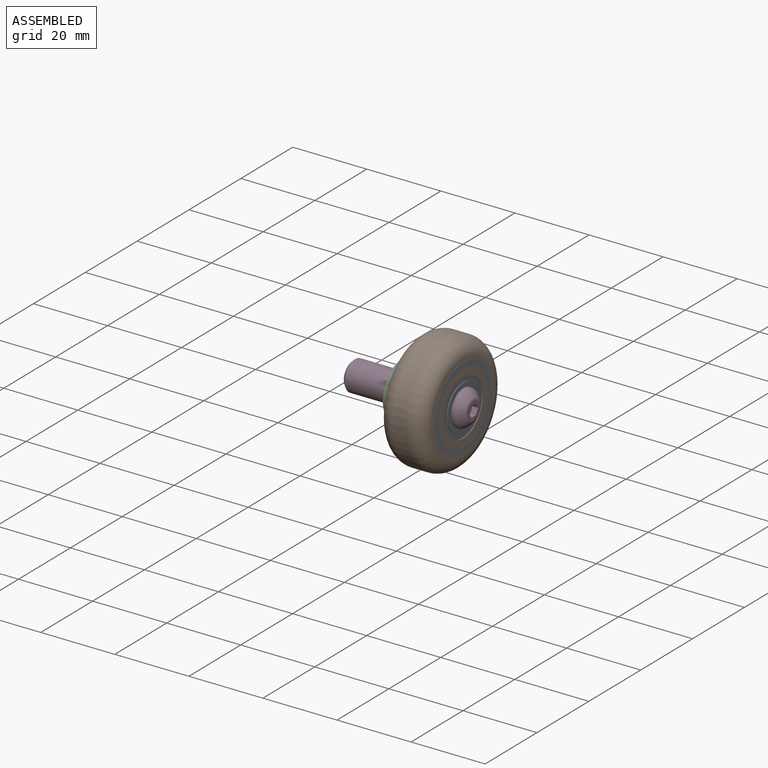
[diagram: assembled view]
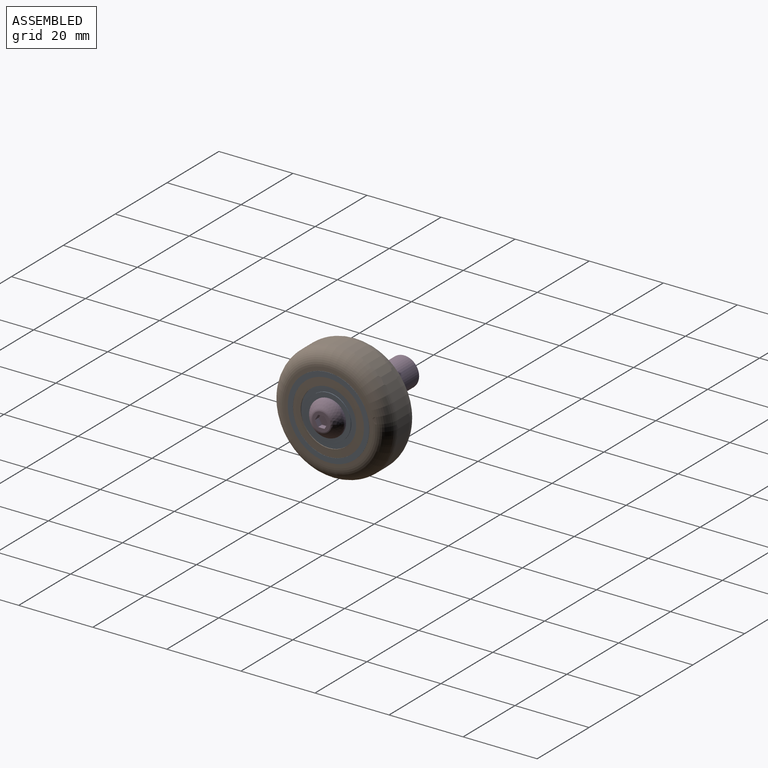
[diagram: assembled view, second angle]
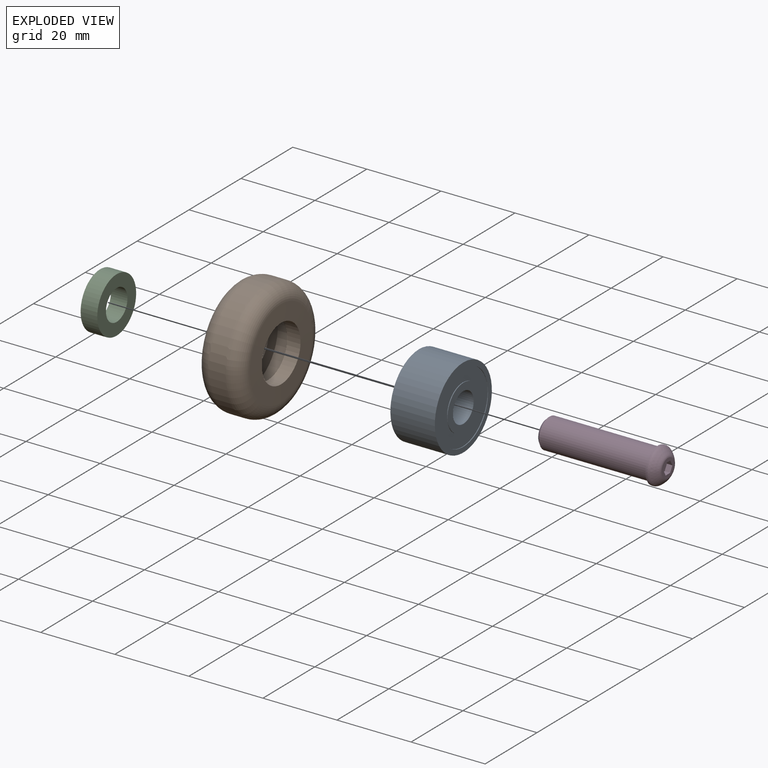
[diagram: exploded view]
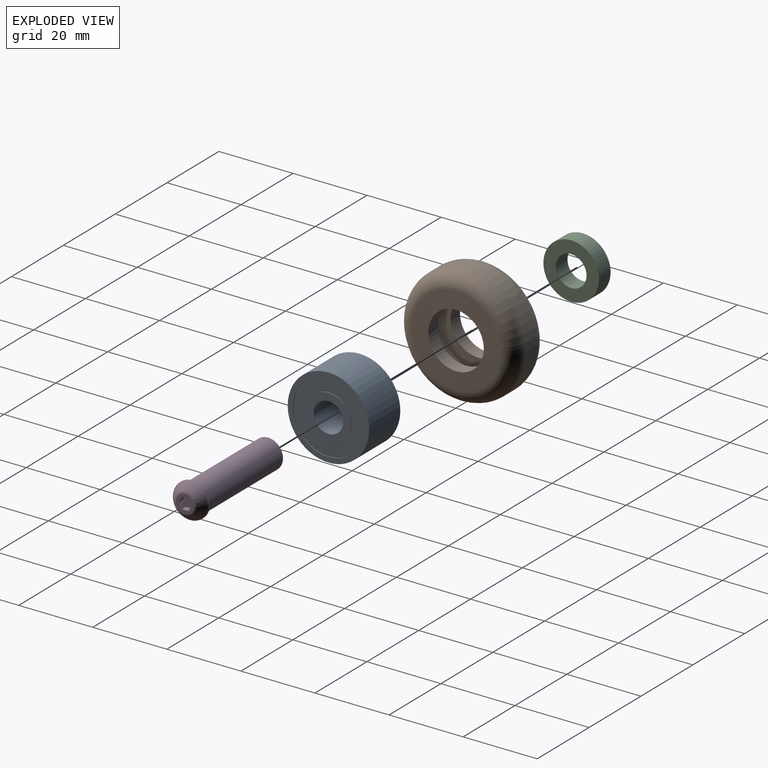
[diagram: exploded view, second angle]
ASSEMBLY  parts=4 mates=3
PART A: 12 faces, bbox 22x22x12 mm
  f0: plane 19.2x19.2mm, normal (0,0,1), area 174.5mm2, adj f1,f4
  f1: cylinder r=6.05mm len=12.1mm, axis (0,0,-1), area 7.6mm2, adj f0,f3
  f2: cylinder r=4mm len=12mm, axis (0,0,-1), area 301.6mm2, adj f3,f9
  f3: plane 12.1x12.1mm, normal (0,0,1), area 64.7mm2, adj f1,f2
  f4: cylinder r=9.6mm len=19.2mm, axis (0,0,-1), area 12.1mm2, adj f0,f6
  f5: cylinder r=11mm len=22mm, axis (0,0,-1), area 829.4mm2, adj f6,f11
  f6: plane 22x22mm, normal (0,0,1), area 90.6mm2, adj f4,f5
  f7: plane 19.2x19.2mm, normal (0,0,-1), area 174.5mm2, adj f8,f10
  f8: cylinder r=6.05mm len=12.1mm, axis (0,0,1), area 7.6mm2, adj f7,f9
  f9: plane 12.1x12.1mm, normal (0,0,-1), area 64.7mm2, adj f2,f8
  f10: cylinder r=9.6mm len=19.2mm, axis (0,0,1), area 12.1mm2, adj f7,f11
  f11: plane 22x22mm, normal (0,0,-1), area 90.6mm2, adj f5,f10
PART B: 10 faces, bbox 12.2x34.6x34.6 mm
  f0: torus R=12mm, axis (-1,0,0), area 570.2mm2, adj f1,f9
  f1: cone r=12.05mm half-angle=89.2deg, axis (1,0,0), area 279.8mm2, adj f0,f2
  f2: cylinder r=7.5mm len=15mm, axis (-1,0,0), area 170.4mm2, adj f1,f3
  f3: plane 22x22mm, normal (1,0,0), area 203.4mm2, adj f2,f4
  f4: cylinder r=11mm len=22mm, axis (-1,0,0), area 345.6mm2, adj f3,f5
  f5: plane 22x22mm, normal (-1,0,0), area 203.4mm2, adj f4,f6
  f6: cylinder r=7.5mm len=15mm, axis (-1,0,0), area 170.4mm2, adj f5,f7
  f7: cone r=12.05mm half-angle=89.2deg, axis (-1,0,0), area 279.8mm2, adj f6,f8
  f8: torus R=12mm, axis (-1,0,0), area 570.2mm2, adj f7,f9
  f9: cylinder r=16mm len=32mm, axis (-1,0,0), area 412.9mm2, adj f0,f8
PART C: 4 faces, bbox 15x15x4.5 mm
  f0: cylinder r=4.15mm len=8.3mm, axis (0,0,-1), area 117.3mm2, adj f2,f3
  f1: cylinder r=7.5mm len=15mm, axis (0,0,-1), area 212.1mm2, adj f2,f3
  f2: plane 15x15mm, normal (0,0,1), area 122.6mm2, adj f0,f1
  f3: plane 15x15mm, normal (0,0,-1), area 122.6mm2, adj f0,f1
PART D: 14 faces, bbox 9.5x9.5x32.8 mm
  f0: plane 5.01x5.01mm, normal (0,0,1), area 11.8mm2, adj f3,f4,f5,f6,f7,f8,f10
  f1: cylinder r=4.75mm len=9.5mm, axis (0,0,-1), area 14.9mm2, adj f2,f10
  f2: plane 9.5x9.5mm, normal (0,0,-1), area 20.6mm2, adj f1,f11
  f3: plane 1.5x1.5mm, normal (-0.87,-0.5,0), area 2.6mm2, adj f0,f4,f8,f9
  f4: plane 1.73x1.5mm, normal (0,-1,0), area 2.6mm2, adj f0,f3,f5,f9
  f5: plane 1.5x1.5mm, normal (0.87,-0.5,0), area 2.6mm2, adj f0,f4,f6,f9
  f6: plane 1.5x1.5mm, normal (0.87,0.5,0), area 2.6mm2, adj f0,f5,f7,f9
  f7: plane 1.73x1.5mm, normal (0,1,0), area 2.6mm2, adj f0,f6,f8,f9
  f8: plane 1.5x1.5mm, normal (-0.87,0.5,0), area 2.6mm2, adj f0,f3,f7,f9
  f9: plane 3.46x3mm, normal (0,0,1), area 7.8mm2, adj f3,f4,f5,f6,f7,f8
  f10: bspline ~9.5x9.5mm, area 78.3mm2, adj f0,f1
  f11: cylinder r=4mm len=29.25mm, axis (0,0,1), area 735.1mm2, adj f2,f13
  f12: plane 6.5x6.5mm, normal (0,0,-1), area 33.2mm2, adj f13
  f13: cone r=3.25mm half-angle=45deg, axis (0,0,1), area 24.2mm2, adj f11,f12
PLACE A rot(axis=(0.71,0,0.71),180deg) t=(23.77,20.46,10.21)mm
PLACE B t=(23.66,20.46,10.21)mm
PLACE C rot(axis=(0.58,-0.58,-0.58),120deg) t=(17.77,20.46,10.21)mm
PLACE D rot(axis=(0.58,0.58,0.58),120deg) t=(29.77,82.96,10.21)mm
MATE fastened D.f1 <-> A.f1  axis (-1,0,0) through (29.77,20.46,10.21)mm
MATE revolute A.f1 <-> B.f0  axis (1,0,0) through (29.77,20.46,10.21)mm
MATE fastened C.f0 <-> A.f1  axis (1,0,0) through (17.77,20.46,10.21)mm
